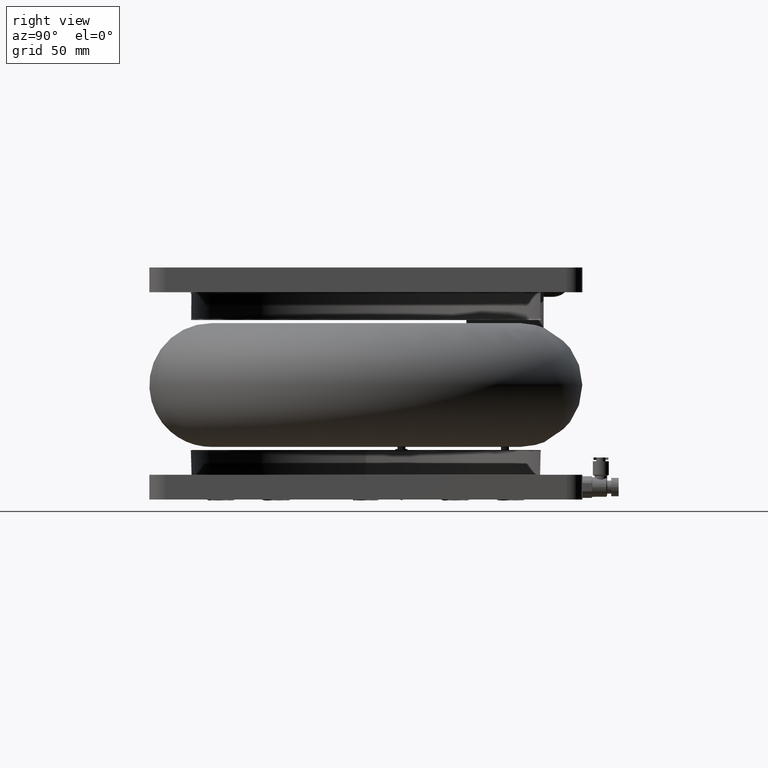
[diagram: clean part render]
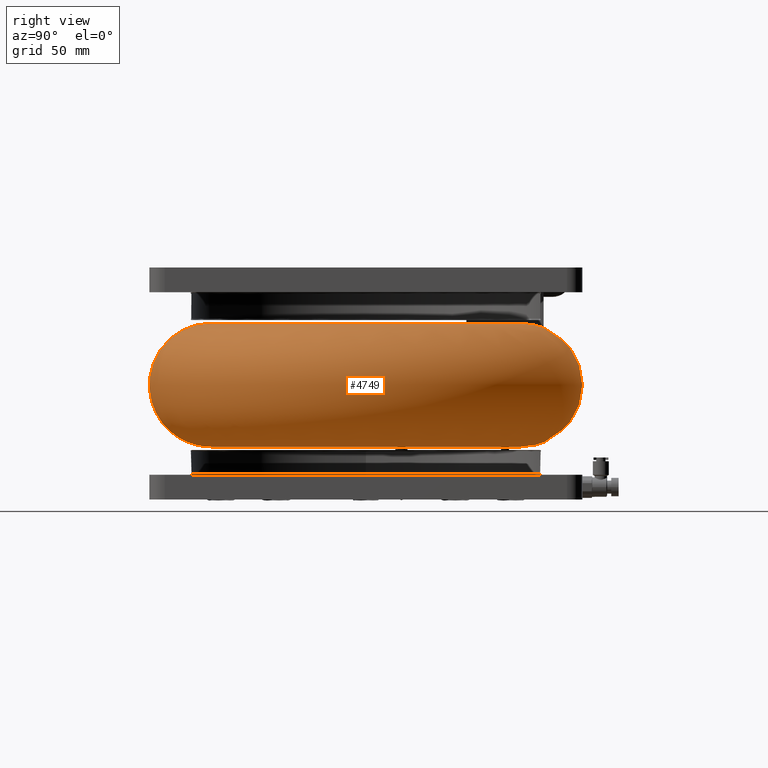
[diagram: same view with one face highlighted and labeled with its STEP entity id]
A machine part, right view. The second image highlights one B-rep face of the part: STEP entity #4749.
In plain terms, the highlighted face is a freeform B-spline surface patch.
Its self-contained STEP definition (entity closure, byte-faithful):
#169 = CARTESIAN_POINT ( 'NONE',  ( -70.69052148631740806, 74.45413560931454811, 203.0000000000000284 ) ) ;
#1524 = CARTESIAN_POINT ( 'NONE',  ( 129.3094785136825635, -205.5458643906854377, 122.9999999999999858 ) ) ;
#1715 = CARTESIAN_POINT ( 'NONE',  ( 129.3094785136825635, 154.4541356093145623, 203.0000000000000853 ) ) ;
#2574 = AXIS2_PLACEMENT_3D ( 'NONE', #28627, #23297, #26254 ) ;
#3119 = CARTESIAN_POINT ( 'NONE',  ( 329.3094785136825635, 74.45413560931454811, 203.0000000000000284 ) ) ;
#3897 = CARTESIAN_POINT ( 'NONE',  ( 129.3094785136825635, -125.5458643906854377, 123.0000000000000000 ) ) ;
#4749 = ADVANCED_FACE ( 'NONE', ( #14992, #33138 ), #36128, .T. ) ;
#5802 = CARTESIAN_POINT ( 'NONE',  ( 129.3094785136825635, -25.54586439068544479, 123.0000000000000000 ) ) ;
#6078 = CARTESIAN_POINT ( 'NONE',  ( 329.3094785136825635, -125.5458643906854377, 203.0000000000000284 ) ) ;
#6187 = DIRECTION ( 'NONE',  ( 0.000000000000000000, -1.000000000000000000, 0.000000000000000000 ) ) ;
#7049 = CARTESIAN_POINT ( 'NONE',  ( -230.6905214863174081, 154.4541356093146192, 203.0000000000000568 ) ) ;
#7095 = EDGE_CURVE ( 'NONE', #14022, #14022, #31574, .T. ) ;
#7438 = CARTESIAN_POINT ( 'NONE',  ( 129.3094785136825635, -205.5458643906854377, 203.0000000000000853 ) ) ;
#7634 = CARTESIAN_POINT ( 'NONE',  ( -70.69052148631740806, -125.5458643906854377, 122.9999999999999858 ) ) ;
#8747 = EDGE_LOOP ( 'NONE', ( #30315 ) ) ;
#9252 = CARTESIAN_POINT ( 'NONE',  ( 129.3094785136825635, -125.5458643906854377, 203.0000000000000000 ) ) ;
#9428 = ORIENTED_EDGE ( 'NONE', *, *, #7095, .T. ) ;
#10219 = CARTESIAN_POINT ( 'NONE',  ( -230.6905214863174081, 154.4541356093146192, 123.0000000000000000 ) ) ;
#10609 = CARTESIAN_POINT ( 'NONE',  ( 129.3094785136825635, 154.4541356093145623, 122.9999999999999858 ) ) ;
#10924 = EDGE_CURVE ( 'NONE', #22519, #22519, #24171, .T. ) ;
#12179 = AXIS2_PLACEMENT_3D ( 'NONE', #5802, #38584, #6187 ) ;
#12748 = EDGE_LOOP ( 'NONE', ( #9428 ) ) ;
#13008 = CARTESIAN_POINT ( 'NONE',  ( 129.3094785136825635, 74.45413560931454811, 123.0000000000000000 ) ) ;
#13192 = CARTESIAN_POINT ( 'NONE',  ( 329.3094785136825635, -125.5458643906854377, 122.9999999999999858 ) ) ;
#14022 = VERTEX_POINT ( 'NONE', #25866 ) ;
#14992 = FACE_OUTER_BOUND ( 'NONE', #8747, .T. ) ;
#15181 = CARTESIAN_POINT ( 'NONE',  ( 129.3094785136825635, 74.45413560931454811, 203.0000000000000000 ) ) ;
#16330 = CARTESIAN_POINT ( 'NONE',  ( 489.3094785136825067, -205.5458643906854377, 123.0000000000000000 ) ) ;
#18911 = CARTESIAN_POINT ( 'NONE',  ( 329.3094785136825635, 74.45413560931454811, 122.9999999999999858 ) ) ;
#19109 = CARTESIAN_POINT ( 'NONE',  ( 129.3094785136825635, -205.5458643906854377, 203.0000000000000853 ) ) ;
#19490 = CARTESIAN_POINT ( 'NONE',  ( -230.6905214863174081, -205.5458643906854377, 123.0000000000000000 ) ) ;
#19696 = CARTESIAN_POINT ( 'NONE',  ( 489.3094785136825067, 154.4541356093146192, 203.0000000000000568 ) ) ;
#22279 = CARTESIAN_POINT ( 'NONE',  ( 129.3094785136825635, -205.5458643906854377, 122.9999999999999858 ) ) ;
#22519 = VERTEX_POINT ( 'NONE', #28831 ) ;
#23297 = DIRECTION ( 'NONE',  ( -0.000000000000000000, -0.000000000000000000, -1.000000000000000000 ) ) ;
#24171 = CIRCLE ( 'NONE', #12179, 99.99999999999998579 ) ;
#25435 = CARTESIAN_POINT ( 'NONE',  ( 489.3094785136825067, -205.5458643906854377, 203.0000000000000568 ) ) ;
#25866 = CARTESIAN_POINT ( 'NONE',  ( 129.3094785136825635, -125.5458643906854377, 203.0000000000000000 ) ) ;
#26254 = DIRECTION ( 'NONE',  ( 0.000000000000000000, -1.000000000000000000, 0.000000000000000000 ) ) ;
#28627 = CARTESIAN_POINT ( 'NONE',  ( 129.3094785136825635, -25.54586439068544479, 203.0000000000000000 ) ) ;
#28784 = CARTESIAN_POINT ( 'NONE',  ( 489.3094785136825067, 154.4541356093146192, 123.0000000000000000 ) ) ;
#28831 = CARTESIAN_POINT ( 'NONE',  ( 129.3094785136825635, -125.5458643906854377, 123.0000000000000000 ) ) ;
#30315 = ORIENTED_EDGE ( 'NONE', *, *, #10924, .T. ) ;
#31155 = CARTESIAN_POINT ( 'NONE',  ( 129.3094785136825635, -125.5458643906854377, 123.0000000000000000 ) ) ;
#31528 = CARTESIAN_POINT ( 'NONE',  ( -70.69052148631740806, 74.45413560931454811, 122.9999999999999858 ) ) ;
#31574 = CIRCLE ( 'NONE', #2574, 99.99999999999998579 ) ;
#33138 = FACE_OUTER_BOUND ( 'NONE', #12748, .T. ) ;
#34100 = CARTESIAN_POINT ( 'NONE',  ( -230.6905214863174081, -205.5458643906854377, 203.0000000000000568 ) ) ;
#36128 =( BOUNDED_SURFACE ( )  B_SPLINE_SURFACE ( 3, 3, ( 
 ( #39062, #6078, #3119, #15181, #169, #36302, #9252 ),
 ( #7438, #25435, #19696, #1715, #7049, #34100, #19109 ),
 ( #1524, #16330, #28784, #10609, #10219, #19490, #22279 ),
 ( #3897, #13192, #18911, #13008, #31528, #7634, #31155 ) ),
 .UNSPECIFIED., .F., .T., .T. ) 
 B_SPLINE_SURFACE_WITH_KNOTS ( ( 4, 4 ),
 ( 4, 3, 4 ),
 ( 0.000000000000000000, 1.000000000000000000 ),
 ( 0.000000000000000000, 0.5000000000000000000, 1.000000000000000000 ),
 .UNSPECIFIED. ) 
 GEOMETRIC_REPRESENTATION_ITEM ( )  RATIONAL_B_SPLINE_SURFACE ( (
 ( 1.000000000000000000, 0.3333333333333333148, 0.3333333333333333148, 1.000000000000000000, 0.3333333333333333148, 0.3333333333333333148, 1.000000000000000000),
 ( 0.3333333333333333703, 0.1111111111111111188, 0.1111111111111111188, 0.3333333333333333703, 0.1111111111111111188, 0.1111111111111111188, 0.3333333333333333703),
 ( 0.3333333333333333703, 0.1111111111111111188, 0.1111111111111111188, 0.3333333333333333703, 0.1111111111111111188, 0.1111111111111111188, 0.3333333333333333703),
 ( 1.000000000000000000, 0.3333333333333333148, 0.3333333333333333148, 1.000000000000000000, 0.3333333333333333148, 0.3333333333333333148, 1.000000000000000000) ) ) 
 REPRESENTATION_ITEM ( '' )  SURFACE ( )  );
#36302 = CARTESIAN_POINT ( 'NONE',  ( -70.69052148631740806, -125.5458643906854377, 203.0000000000000284 ) ) ;
#38584 = DIRECTION ( 'NONE',  ( 0.000000000000000000, 0.000000000000000000, 1.000000000000000000 ) ) ;
#39062 = CARTESIAN_POINT ( 'NONE',  ( 129.3094785136825635, -125.5458643906854377, 203.0000000000000000 ) ) ;